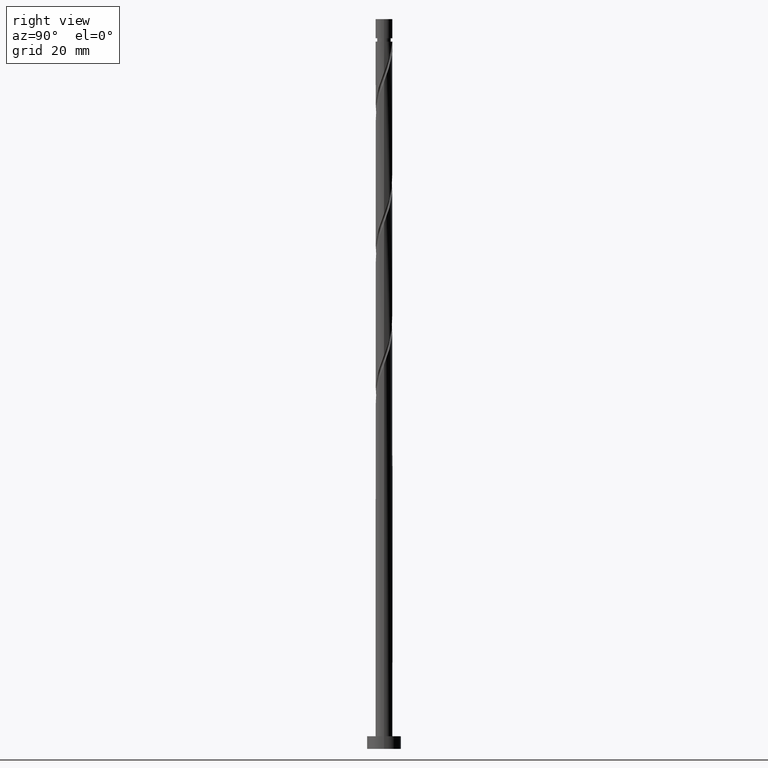
[diagram: clean part render]
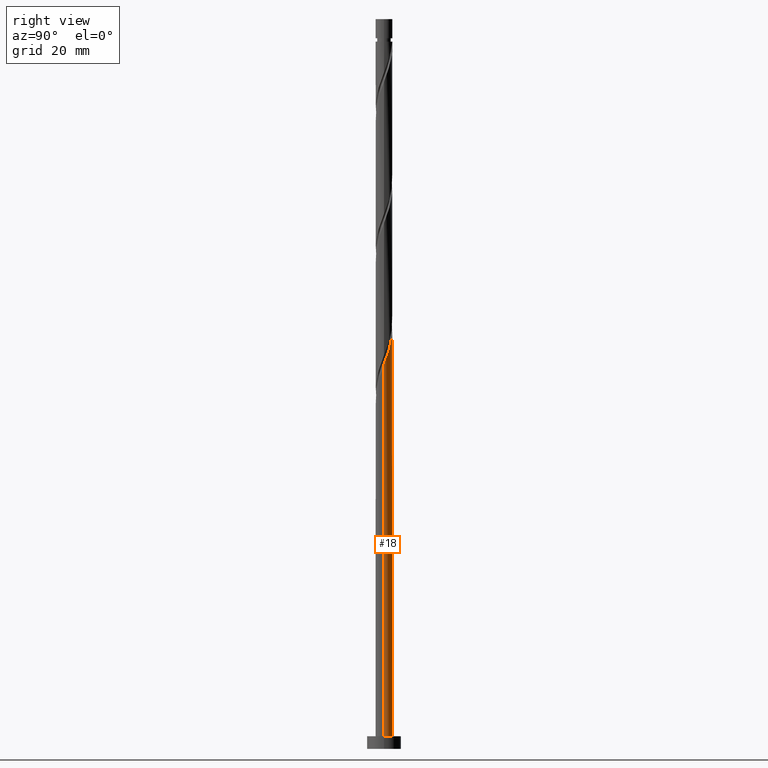
[diagram: same view with one face highlighted and labeled with its STEP entity id]
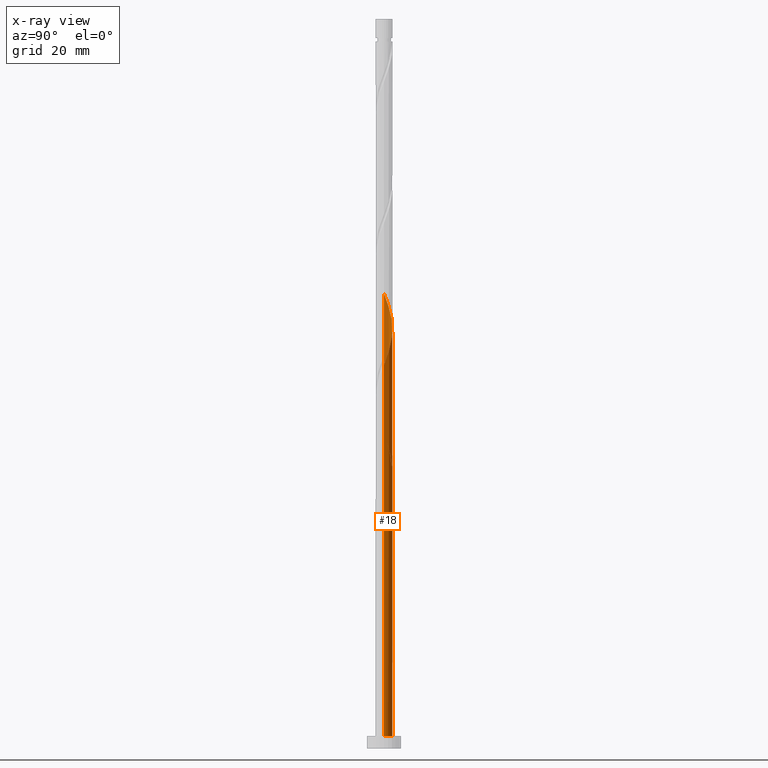
[diagram: x-ray of the same camera — body ghosted, the highlighted face saturated]
A machine part, right view. The second image highlights one B-rep face of the part: STEP entity #18.
The next image is the same camera in x-ray: the body ghosted, the highlighted face saturated — about 0% of this face is hidden behind the body in this view.
In plain terms, the highlighted cylindrical surface (edge-blend (fillet) strip) has radius 2 mm, axis along (-0, -0, -1).
Its self-contained STEP definition (entity closure, byte-faithful):
#18 = ADVANCED_FACE ( 'NONE', ( #200 ), #1001, .T. ) ;
#27 = CARTESIAN_POINT ( 'NONE',  ( 0.1228517034671602476, 1.996223298870951846, 98.62874283174664924 ) ) ;
#52 = CARTESIAN_POINT ( 'NONE',  ( 2.000000000000000000, 2.449293598294706414E-16, 3.000000000000000000 ) ) ;
#154 = CARTESIAN_POINT ( 'NONE',  ( -1.127404036555502698, 1.672808912829665484, 68.76763172063553498 ) ) ;
#158 = DIRECTION ( 'NONE',  ( -0.000000000000000000, -0.000000000000000000, -1.000000000000000000 ) ) ;
#182 = DIRECTION ( 'NONE',  ( -1.000000000000000000, 0.000000000000000000, 0.000000000000000000 ) ) ;
#197 = DIRECTION ( 'NONE',  ( -0.000000000000000000, -0.000000000000000000, -1.000000000000000000 ) ) ;
#200 = FACE_OUTER_BOUND ( 'NONE', #1461, .T. ) ;
#248 = CARTESIAN_POINT ( 'NONE',  ( -0.8917189533347237296, 1.790205940182199695, 101.4065206095244349 ) ) ;
#254 = EDGE_CURVE ( 'NONE', #1507, #325, #771, .T. ) ;
#258 = AXIS2_PLACEMENT_3D ( 'NONE', #1695, #1299, #182 ) ;
#278 =( BOUNDED_CURVE ( )  B_SPLINE_CURVE ( 2, ( #984, #1242, #1109, #154, #1509, #437, #1526, #1491, #301, #821, #1083, #814, #1253 ),
 .UNSPECIFIED., .F., .T. ) 
 B_SPLINE_CURVE_WITH_KNOTS ( ( 3, 2, 2, 2, 2, 2, 3 ),
 ( 0.000000000000000000, 0.01041666666666662966, 0.02083333333333337034, 0.03125000000000000000, 0.04166666666666662966, 0.05208333333333337034, 0.05453176698144635709 ),
 .UNSPECIFIED. ) 
 CURVE ( )  GEOMETRIC_REPRESENTATION_ITEM ( )  RATIONAL_B_SPLINE_CURVE ( ( 0.9090909090909304879, 0.9013135103398485226, 0.9090909090909304879, 0.9013135103398485226, 0.9090909090909304879, 0.9013135103398485226, 0.9090909090909304879, 0.9013135103398485226, 0.9090909090909304879, 0.9013135103398485226, 0.9090909090909304879, 0.9072628343904241000, 0.9062941362546506063 ) ) 
 REPRESENTATION_ITEM ( '' )  );
#285 = CARTESIAN_POINT ( 'NONE',  ( 2.000000000000002665, 3.514139344250696490E-16, 90.62073173209213905 ) ) ;
#288 = CARTESIAN_POINT ( 'NONE',  ( -1.790205940182197031, 0.8917189533347232855, 73.62874283174664924 ) ) ;
#295 = CARTESIAN_POINT ( 'NONE',  ( 0.3856594865056714450, 1.980049565276634782, 97.93429838730223480 ) ) ;
#301 = CARTESIAN_POINT ( 'NONE',  ( -1.896407278838825983, 0.6353262412077188559, 72.23985394285773509 ) ) ;
#309 = ORIENTED_EDGE ( 'NONE', *, *, #978, .F. ) ;
#312 = VERTEX_POINT ( 'NONE', #375 ) ;
#314 = LINE ( 'NONE', #849, #631 ) ;
#316 = CARTESIAN_POINT ( 'NONE',  ( -0.1228517034671581937, 1.996223298870949403, 68.07318727619109211 ) ) ;
#319 = CIRCLE ( 'NONE', #258, 2.000000000000000000 ) ;
#325 = VERTEX_POINT ( 'NONE', #1427 ) ;
#354 = CARTESIAN_POINT ( 'NONE',  ( -1.996223298870951846, 0.1228517034671590541, 106.9620761650799778 ) ) ;
#375 = CARTESIAN_POINT ( 'NONE',  ( -2.000000000000000000, -3.050572026498495541E-15, 76.08119837584563072 ) ) ;
#387 = CARTESIAN_POINT ( 'NONE',  ( -1.324673758792283440, 1.498412303996177419, 102.7954094984132922 ) ) ;
#414 = ORIENTED_EDGE ( 'NONE', *, *, #1588, .T. ) ;
#426 = AXIS2_PLACEMENT_3D ( 'NONE', #733, #1413, #761 ) ;
#434 = LINE ( 'NONE', #557, #735 ) ;
#437 = CARTESIAN_POINT ( 'NONE',  ( -1.521943481029065071, 1.324015695162690243, 70.15652060952444913 ) ) ;
#445 = CARTESIAN_POINT ( 'NONE',  ( -1.907602967534732130, 0.6560338701139447615, 74.32318727619112053 ) ) ;
#455 = VERTEX_POINT ( 'NONE', #52 ) ;
#482 = CARTESIAN_POINT ( 'NONE',  ( 0.000000000000000000, 0.000000000000000000, 172.0000000000000000 ) ) ;
#489 = LINE ( 'NONE', #1170, #962 ) ;
#523 = CARTESIAN_POINT ( 'NONE',  ( -1.127404036555502698, 1.672808912829665484, 102.1009650539688778 ) ) ;
#526 = CARTESIAN_POINT ( 'NONE',  ( 2.000000000000002665, 0.2010075630518423917, 91.15415810128142482 ) ) ;
#537 = EDGE_CURVE ( 'NONE', #312, #1457, #900, .T. ) ;
#557 = CARTESIAN_POINT ( 'NONE',  ( 2.000000000000000000, 2.449293598294706414E-16, 172.0000000000000000 ) ) ;
#568 = EDGE_CURVE ( 'NONE', #1507, #455, #434, .T. ) ;
#594 = CARTESIAN_POINT ( 'NONE',  ( 1.498412303996177863, 1.324673758792282330, 94.46207616507997784 ) ) ;
#608 = DIRECTION ( 'NONE',  ( -0.000000000000000000, -0.000000000000000000, -1.000000000000000000 ) ) ;
#631 = VECTOR ( 'NONE', #158, 1000.000000000000000 ) ;
#689 = CARTESIAN_POINT ( 'NONE',  ( 1.960000000000002185, 0.3979949748426485634, 91.68429838730220638 ) ) ;
#692 = CARTESIAN_POINT ( 'NONE',  ( -1.104504345536226673, 1.667354236715039129, 70.85096505396887778 ) ) ;
#715 = CIRCLE ( 'NONE', #426, 2.000000000000000000 ) ;
#717 = CARTESIAN_POINT ( 'NONE',  ( 2.000000000000002665, 3.514139344250696490E-16, 90.62073173209213905 ) ) ;
#731 = ORIENTED_EDGE ( 'NONE', *, *, #568, .T. ) ;
#733 = CARTESIAN_POINT ( 'NONE',  ( 0.000000000000000000, 0.000000000000000000, 3.000000000000000000 ) ) ;
#735 = VECTOR ( 'NONE', #1374, 1000.000000000000000 ) ;
#737 = CARTESIAN_POINT ( 'NONE',  ( 1.104504345536228671, 1.667354236715040683, 95.85096505396887778 ) ) ;
#759 = ORIENTED_EDGE ( 'NONE', *, *, #1636, .T. ) ;
#761 = DIRECTION ( 'NONE',  ( 1.000000000000000000, 0.000000000000000000, 0.000000000000000000 ) ) ;
#766 = ORIENTED_EDGE ( 'NONE', *, *, #1086, .F. ) ;
#771 =( BOUNDED_CURVE ( )  B_SPLINE_CURVE ( 2, ( #285, #526, #689, #1398, #977, #1529, #594, #866, #737, #1583, #1473, #295, #27, #1320, #1062, #894, #248, #523, #387, #1465, #1335, #1570, #1707, #1036, #354, #1370, #1652 ),
 .UNSPECIFIED., .F., .T. ) 
 B_SPLINE_CURVE_WITH_KNOTS ( ( 3, 2, 2, 2, 2, 2, 2, 2, 2, 2, 2, 2, 2, 3 ),
 ( 0.1795317669814463502, 0.1875000000000000000, 0.1979166666666666297, 0.2083333333333333703, 0.2187500000000000000, 0.2291666666666666297, 0.2395833333333333703, 0.2500000000000000000, 0.2604166666666666297, 0.2708333333333333703, 0.2812500000000000000, 0.2916666666666666297, 0.3020833333333333703, 0.3045317669814465167 ),
 .UNSPECIFIED. ) 
 CURVE ( )  GEOMETRIC_REPRESENTATION_ITEM ( )  RATIONAL_B_SPLINE_CURVE ( ( 0.9062941362546506063, 0.9031415850403547996, 0.9090909090909304879, 0.9013135103398485226, 0.9090909090909304879, 0.9013135103398485226, 0.9090909090909304879, 0.9013135103398485226, 0.9090909090909304879, 0.9013135103398485226, 0.9090909090909304879, 0.9013135103398485226, 0.9090909090909304879, 0.9013135103398485226, 0.9090909090909304879, 0.9013135103398485226, 0.9090909090909304879, 0.9013135103398485226, 0.9090909090909304879, 0.9013135103398485226, 0.9090909090909304879, 0.9013135103398485226, 0.9090909090909304879, 0.9013135103398485226, 0.9090909090909304879, 0.9072628343904238779, 0.9062941362546503843 ) ) 
 REPRESENTATION_ITEM ( '' )  );
#814 = CARTESIAN_POINT ( 'NONE',  ( -2.000000000000002665, 0.06148390331534610287, 73.79090137739733279 ) ) ;
#821 = CARTESIAN_POINT ( 'NONE',  ( -1.980049565276635226, 0.3856594865056702237, 72.93429838730220638 ) ) ;
#826 = CARTESIAN_POINT ( 'NONE',  ( -0.6353262412077169685, 1.896407278838823984, 69.46207616508000626 ) ) ;
#849 = CARTESIAN_POINT ( 'NONE',  ( -2.000000000000000000, 0.000000000000000000, 172.0000000000000000 ) ) ;
#852 = CARTESIAN_POINT ( 'NONE',  ( 0.1399560795713529482, 2.012397032465267799, 67.37874283174667767 ) ) ;
#866 = CARTESIAN_POINT ( 'NONE',  ( 1.324015695162691575, 1.521943481029063516, 95.15652060952443492 ) ) ;
#886 = CARTESIAN_POINT ( 'NONE',  ( -0.3979949748426484524, 1.960000000000002185, 66.68429838730222059 ) ) ;
#894 = CARTESIAN_POINT ( 'NONE',  ( -0.6560338701139450945, 1.907602967534734573, 100.7120761650799921 ) ) ;
#900 =( BOUNDED_CURVE ( )  B_SPLINE_CURVE ( 2, ( #1136, #1644, #1655, #445, #288, #1674, #1523, #1098, #692, #1126, #826, #991, #316, #852, #1231 ),
 .UNSPECIFIED., .F., .T. ) 
 B_SPLINE_CURVE_WITH_KNOTS ( ( 3, 2, 2, 2, 2, 2, 2, 3 ),
 ( 0.9295317669814462391, 0.9375000000000000000, 0.9479166666666666297, 0.9583333333333333703, 0.9687500000000000000, 0.9791666666666666297, 0.9895833333333333703, 1.000000000000000000 ),
 .UNSPECIFIED. ) 
 CURVE ( )  GEOMETRIC_REPRESENTATION_ITEM ( )  RATIONAL_B_SPLINE_CURVE ( ( 0.9062941362546450552, 0.9031415850403492485, 0.9090909090909247148, 0.9013135103398430825, 0.9090909090909247148, 0.9013135103398430825, 0.9090909090909247148, 0.9013135103398430825, 0.9090909090909247148, 0.9013135103398430825, 0.9090909090909247148, 0.9013135103398430825, 0.9090909090909247148, 0.9013135103398430825, 0.9090909090909247148 ) ) 
 REPRESENTATION_ITEM ( '' )  );
#962 = VECTOR ( 'NONE', #197, 1000.000000000000000 ) ;
#977 = CARTESIAN_POINT ( 'NONE',  ( 1.790205940182200139, 0.8917189533347229524, 93.07318727619109211 ) ) ;
#978 = EDGE_CURVE ( 'NONE', #325, #312, #314, .T. ) ;
#984 = CARTESIAN_POINT ( 'NONE',  ( -0.3979949748426484524, 1.960000000000002185, 66.68429838730222059 ) ) ;
#991 = CARTESIAN_POINT ( 'NONE',  ( -0.3856594865056693355, 1.980049565276632340, 68.76763172063557761 ) ) ;
#1001 = CYLINDRICAL_SURFACE ( 'NONE', #1437, 2.000000000000000000 ) ;
#1036 = CARTESIAN_POINT ( 'NONE',  ( -1.980049565276635226, 0.3856594865056702237, 106.2676317206355634 ) ) ;
#1062 = CARTESIAN_POINT ( 'NONE',  ( -0.3979949748426484524, 1.960000000000002185, 100.0176317206355208 ) ) ;
#1083 = CARTESIAN_POINT ( 'NONE',  ( -1.996223298870951846, 0.1228517034671590541, 73.62874283174664924 ) ) ;
#1086 = EDGE_CURVE ( 'NONE', #1097, #1438, #489, .T. ) ;
#1097 = VERTEX_POINT ( 'NONE', #1283 ) ;
#1098 = CARTESIAN_POINT ( 'NONE',  ( -1.324015695162687578, 1.521943481029062850, 71.54540949841334907 ) ) ;
#1109 = CARTESIAN_POINT ( 'NONE',  ( -0.8917189533347237296, 1.790205940182199695, 68.07318727619109211 ) ) ;
#1126 = CARTESIAN_POINT ( 'NONE',  ( -0.8849929959097655452, 1.812764992401016073, 70.15652060952444913 ) ) ;
#1127 = VERTEX_POINT ( 'NONE', #886 ) ;
#1136 = CARTESIAN_POINT ( 'NONE',  ( -2.000000000000000000, -3.050572026498495541E-15, 76.08119837584563072 ) ) ;
#1170 = CARTESIAN_POINT ( 'NONE',  ( -2.000000000000000000, 0.000000000000000000, 172.0000000000000000 ) ) ;
#1231 = CARTESIAN_POINT ( 'NONE',  ( 0.3979949748426492295, 1.959999999999999520, 66.68429838730222059 ) ) ;
#1242 = CARTESIAN_POINT ( 'NONE',  ( -0.6560338701139450945, 1.907602967534734573, 67.37874283174669188 ) ) ;
#1253 = CARTESIAN_POINT ( 'NONE',  ( -2.000000000000002665, -1.607531827689148313E-15, 73.95406506542548186 ) ) ;
#1283 = CARTESIAN_POINT ( 'NONE',  ( -2.000000000000002665, -1.607531827689148313E-15, 73.95406506542548186 ) ) ;
#1299 = DIRECTION ( 'NONE',  ( 0.000000000000000000, -0.000000000000000000, -1.000000000000000000 ) ) ;
#1320 = CARTESIAN_POINT ( 'NONE',  ( -0.1399560795713507833, 2.012397032465270019, 99.32318727619112053 ) ) ;
#1335 = CARTESIAN_POINT ( 'NONE',  ( -1.667354236715041127, 1.104504345536228449, 104.1842983873021922 ) ) ;
#1370 = CARTESIAN_POINT ( 'NONE',  ( -2.000000000000003109, 0.06148390331534193953, 107.1242347107306756 ) ) ;
#1374 = DIRECTION ( 'NONE',  ( -0.000000000000000000, -0.000000000000000000, -1.000000000000000000 ) ) ;
#1377 = CARTESIAN_POINT ( 'NONE',  ( -2.000000000000000000, 0.000000000000000000, 3.000000000000000000 ) ) ;
#1398 = CARTESIAN_POINT ( 'NONE',  ( 1.907602967534735461, 0.6560338701139445394, 92.37874283174670609 ) ) ;
#1413 = DIRECTION ( 'NONE',  ( 0.000000000000000000, 0.000000000000000000, 1.000000000000000000 ) ) ;
#1427 = CARTESIAN_POINT ( 'NONE',  ( -2.000000000000002665, -1.607531827689148313E-15, 107.2873983987588389 ) ) ;
#1437 = AXIS2_PLACEMENT_3D ( 'NONE', #482, #608, #1684 ) ;
#1438 = VERTEX_POINT ( 'NONE', #1377 ) ;
#1457 = VERTEX_POINT ( 'NONE', #1647 ) ;
#1461 = EDGE_LOOP ( 'NONE', ( #1537, #731, #414, #766, #1480, #759, #1689, #309 ) ) ;
#1465 = CARTESIAN_POINT ( 'NONE',  ( -1.521943481029065071, 1.324015695162690243, 103.4898539428577919 ) ) ;
#1473 = CARTESIAN_POINT ( 'NONE',  ( 0.6353262412077195220, 1.896407278838825761, 97.23985394285776351 ) ) ;
#1480 = ORIENTED_EDGE ( 'NONE', *, *, #1510, .F. ) ;
#1491 = CARTESIAN_POINT ( 'NONE',  ( -1.812764992401018516, 0.8849929959097673215, 71.54540949841333486 ) ) ;
#1507 = VERTEX_POINT ( 'NONE', #717 ) ;
#1509 = CARTESIAN_POINT ( 'NONE',  ( -1.324673758792283440, 1.498412303996177419, 69.46207616507999205 ) ) ;
#1510 = EDGE_CURVE ( 'NONE', #1127, #1097, #278, .T. ) ;
#1523 = CARTESIAN_POINT ( 'NONE',  ( -1.498412303996174533, 1.324673758792282108, 72.23985394285777772 ) ) ;
#1526 = CARTESIAN_POINT ( 'NONE',  ( -1.667354236715041127, 1.104504345536228449, 70.85096505396889199 ) ) ;
#1529 = CARTESIAN_POINT ( 'NONE',  ( 1.672808912829666150, 1.127404036555501810, 93.76763172063554919 ) ) ;
#1537 = ORIENTED_EDGE ( 'NONE', *, *, #254, .F. ) ;
#1570 = CARTESIAN_POINT ( 'NONE',  ( -1.812764992401018516, 0.8849929959097673215, 104.8787428317466350 ) ) ;
#1583 = CARTESIAN_POINT ( 'NONE',  ( 0.8849929959097678767, 1.812764992401018072, 96.54540949841333486 ) ) ;
#1588 = EDGE_CURVE ( 'NONE', #455, #1438, #715, .T. ) ;
#1636 = EDGE_CURVE ( 'NONE', #1127, #1457, #319, .T. ) ;
#1644 = CARTESIAN_POINT ( 'NONE',  ( -2.000000000000000888, 0.2010075630518415313, 75.54777200665635917 ) ) ;
#1647 = CARTESIAN_POINT ( 'NONE',  ( 0.3979949748426491740, 1.959999999999999520, 66.68429838730222059 ) ) ;
#1652 = CARTESIAN_POINT ( 'NONE',  ( -2.000000000000002665, -1.607531827689148313E-15, 107.2873983987588389 ) ) ;
#1655 = CARTESIAN_POINT ( 'NONE',  ( -1.959999999999999520, 0.3979949748426487299, 75.01763172063554919 ) ) ;
#1674 = CARTESIAN_POINT ( 'NONE',  ( -1.672808912829662820, 1.127404036555501587, 72.93429838730223480 ) ) ;
#1684 = DIRECTION ( 'NONE',  ( -1.000000000000000000, 0.000000000000000000, 0.000000000000000000 ) ) ;
#1689 = ORIENTED_EDGE ( 'NONE', *, *, #537, .F. ) ;
#1695 = CARTESIAN_POINT ( 'NONE',  ( 0.000000000000000000, 0.000000000000000000, 66.68429838730222059 ) ) ;
#1707 = CARTESIAN_POINT ( 'NONE',  ( -1.896407278838825983, 0.6353262412077188559, 105.5731872761910779 ) ) ;